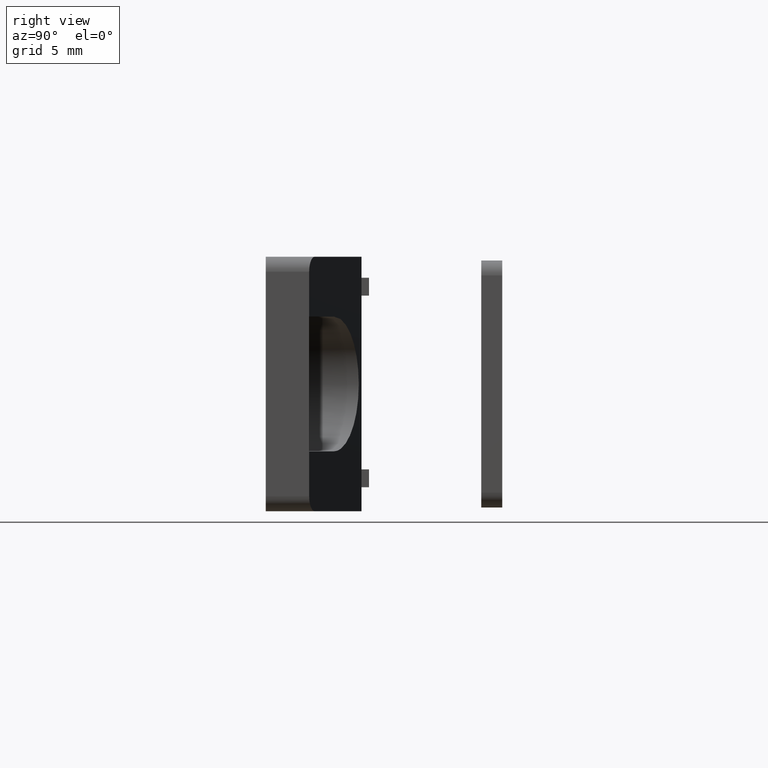
[diagram: clean part render]
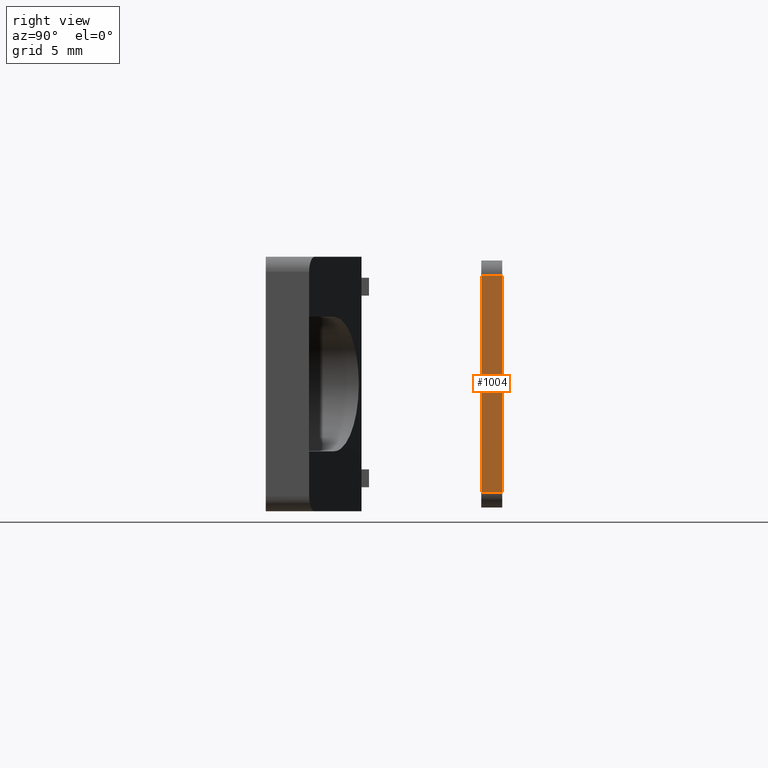
[diagram: same view with one face highlighted and labeled with its STEP entity id]
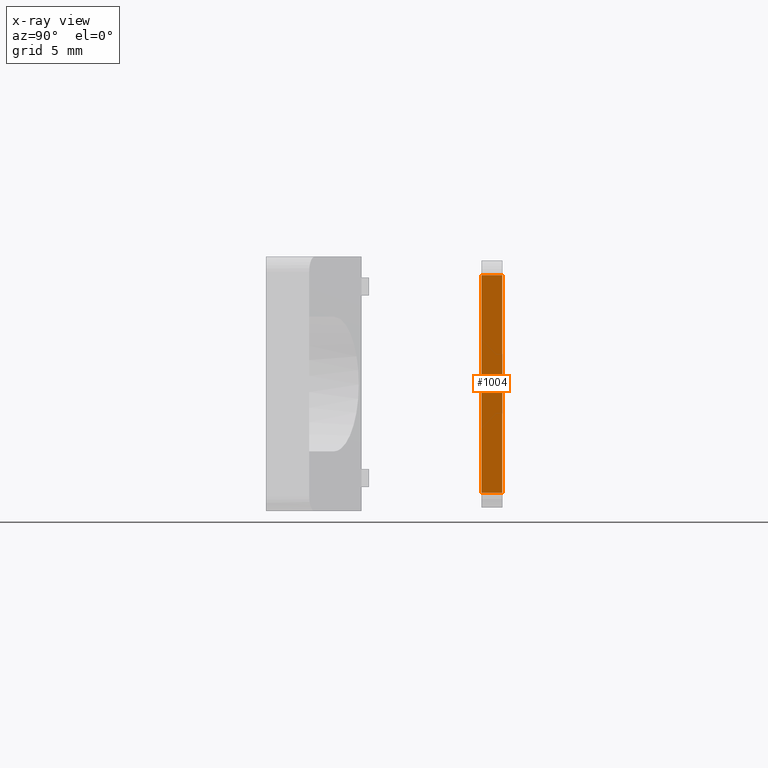
[diagram: x-ray of the same camera — body ghosted, the highlighted face saturated]
A machine part, right view. The second image highlights one B-rep face of the part: STEP entity #1004.
The next image is the same camera in x-ray: the body ghosted, the highlighted face saturated — about 0% of this face is hidden behind the body in this view.
In plain terms, the highlighted planar face has unit normal (1, -0, 0).
Its self-contained STEP definition (entity closure, byte-faithful):
#85=PLANE('',#1093);
#138=FACE_OUTER_BOUND('',#206,.T.);
#206=EDGE_LOOP('',(#874,#875,#876,#877));
#306=LINE('',#1600,#408);
#311=LINE('',#1620,#413);
#312=LINE('',#1624,#414);
#313=LINE('',#1625,#415);
#408=VECTOR('',#1303,14.5);
#413=VECTOR('',#1324,1.4);
#414=VECTOR('',#1329,1.4);
#415=VECTOR('',#1330,14.5);
#525=VERTEX_POINT('',#1597);
#526=VERTEX_POINT('',#1599);
#533=VERTEX_POINT('',#1619);
#534=VERTEX_POINT('',#1623);
#643=EDGE_CURVE('',#525,#526,#306,.T.);
#653=EDGE_CURVE('',#526,#533,#311,.T.);
#655=EDGE_CURVE('',#534,#525,#312,.T.);
#656=EDGE_CURVE('',#534,#533,#313,.T.);
#874=ORIENTED_EDGE('',*,*,#653,.F.);
#875=ORIENTED_EDGE('',*,*,#643,.F.);
#876=ORIENTED_EDGE('',*,*,#655,.F.);
#877=ORIENTED_EDGE('',*,*,#656,.T.);
#1004=ADVANCED_FACE('',(#138),#85,.T.);
#1093=AXIS2_PLACEMENT_3D('',#1622,#1327,#1328);
#1303=DIRECTION('',(0.,1.,0.));
#1324=DIRECTION('',(0.,0.,-1.));
#1327=DIRECTION('center_axis',(1.,0.,0.));
#1328=DIRECTION('ref_axis',(0.,1.,0.));
#1329=DIRECTION('',(0.,0.,1.));
#1330=DIRECTION('',(0.,1.,0.));
#1597=CARTESIAN_POINT('',(12.,-7.25,2.));
#1599=CARTESIAN_POINT('',(12.,7.25,2.));
#1600=CARTESIAN_POINT('',(12.,-8.25,2.));
#1619=CARTESIAN_POINT('',(12.,7.25,0.6));
#1620=CARTESIAN_POINT('',(12.,7.25,0.6));
#1622=CARTESIAN_POINT('Origin',(12.,-8.25,0.6));
#1623=CARTESIAN_POINT('',(12.,-7.25,0.6));
#1624=CARTESIAN_POINT('',(12.,-7.25,0.6));
#1625=CARTESIAN_POINT('',(12.,-8.25,0.6));